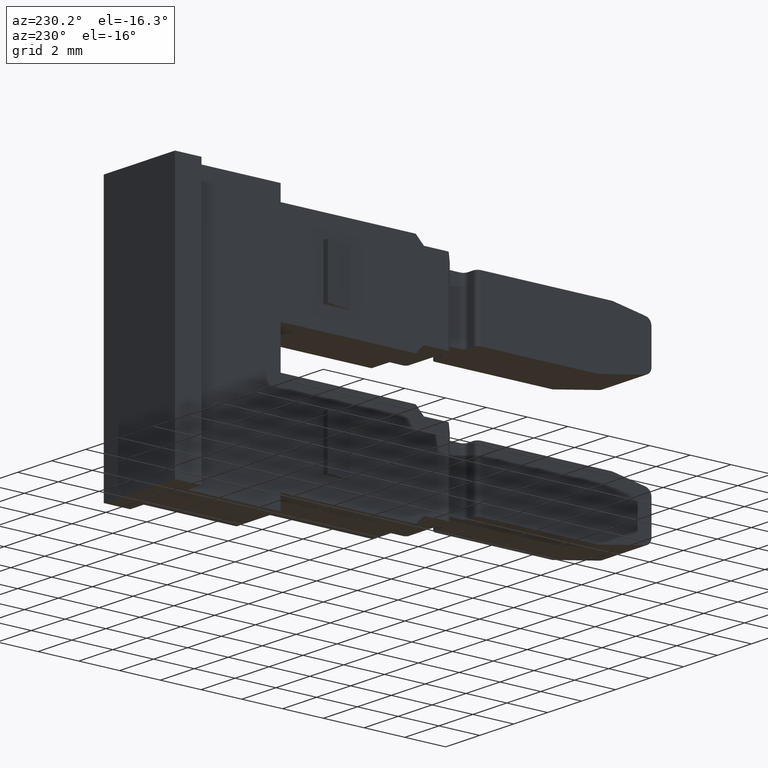
[diagram: clean part render]
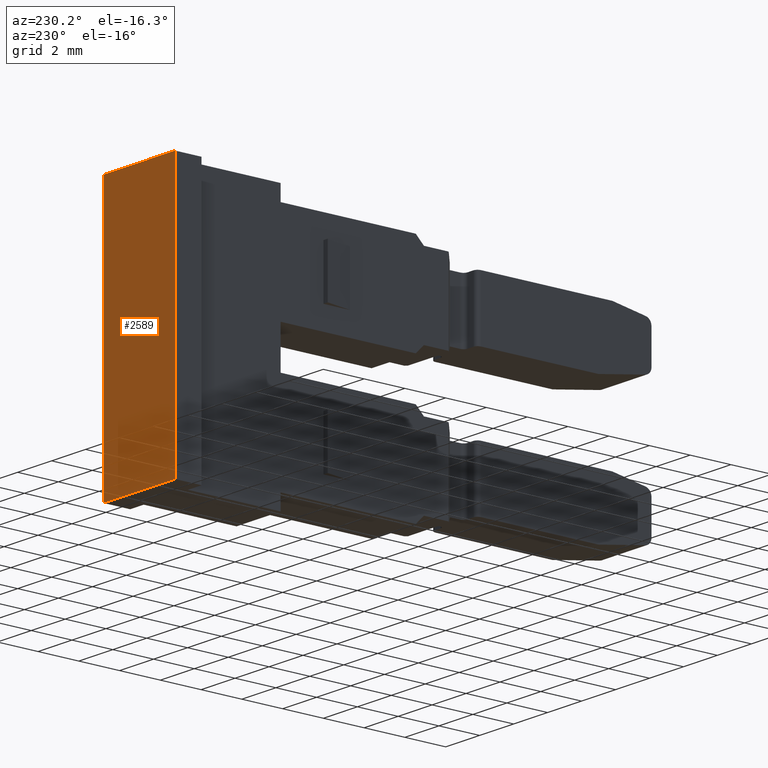
[diagram: same view with one face highlighted and labeled with its STEP entity id]
A machine part, auxiliary view. The second image highlights one B-rep face of the part: STEP entity #2589.
In plain terms, the highlighted planar face has unit normal (-0, -1, -0).
Its self-contained STEP definition (entity closure, byte-faithful):
#9 = ORIENTED_EDGE ( 'NONE', *, *, #2482, .F. ) ;
#17 = ORIENTED_EDGE ( 'NONE', *, *, #2439, .T. ) ;
#22 = ORIENTED_EDGE ( 'NONE', *, *, #2485, .T. ) ;
#26 = ORIENTED_EDGE ( 'NONE', *, *, #2506, .T. ) ;
#41 = ORIENTED_EDGE ( 'NONE', *, *, #2460, .F. ) ;
#120 = EDGE_LOOP ( 'NONE', ( #26, #22, #9, #17, #41 ) ) ;
#145 = CARTESIAN_POINT ( 'NONE',  ( 1394.182440319829500, 1077.957091196375100, 9.800000000002388100 ) ) ;
#150 = CARTESIAN_POINT ( 'NONE',  ( 1390.282440319680500, 1077.957128183415100, 9.800000000002359700 ) ) ;
#243 = CARTESIAN_POINT ( 'NONE',  ( 1389.982440319639900, 1077.957131028571000, -3.099999999942422600 ) ) ;
#289 = CARTESIAN_POINT ( 'NONE',  ( 1389.982440319680300, 1077.957126760835800, 9.800000000002381000 ) ) ;
#299 = CARTESIAN_POINT ( 'NONE',  ( 1394.182440319829500, 1077.957091196375100, -3.099999999942415900 ) ) ;
#436 = VERTEX_POINT ( 'NONE', #145 ) ;
#438 = VERTEX_POINT ( 'NONE', #150 ) ;
#480 = VERTEX_POINT ( 'NONE', #243 ) ;
#518 = VERTEX_POINT ( 'NONE', #289 ) ;
#551 = VERTEX_POINT ( 'NONE', #299 ) ;
#1168 = LINE ( 'NONE', #1225, #2058 ) ;
#1211 = DIRECTION ( 'NONE',  ( -0.9999999999550282000, 9.483856143999501200E-006, -1.734723475820503000E-015 ) ) ;
#1225 = CARTESIAN_POINT ( 'NONE',  ( 1394.082440319833900, 1077.957092144760700, -3.099999999942415900 ) ) ;
#1240 = CARTESIAN_POINT ( 'NONE',  ( 1389.982440319639900, 1077.957131028572100, 63.60600222243470400 ) ) ;
#1247 = LINE ( 'NONE', #1240, #2076 ) ;
#1274 = DIRECTION ( 'NONE',  ( -5.379506506941585200E-033, 5.672277993817434100E-028, -1.000000000000000000 ) ) ;
#1294 = LINE ( 'NONE', #1346, #2112 ) ;
#1315 = LINE ( 'NONE', #1316, #2073 ) ;
#1316 = CARTESIAN_POINT ( 'NONE',  ( 1394.182440319829500, 1077.957091196377200, 63.60600222243470400 ) ) ;
#1322 = DIRECTION ( 'NONE',  ( -5.379506530252374700E-033, -5.672277992797063800E-028, 1.000000000000000000 ) ) ;
#1338 = LINE ( 'NONE', #1379, #2108 ) ;
#1346 = CARTESIAN_POINT ( 'NONE',  ( 1390.282440319680500, 1077.957128183415100, 9.800000000002381000 ) ) ;
#1357 = DIRECTION ( 'NONE',  ( 0.9999999999550282000, -9.483856389462251300E-006, 1.826024711398672100E-015 ) ) ;
#1379 = CARTESIAN_POINT ( 'NONE',  ( 1412.087261014409900, 1077.957126760835800, 9.800000000002420100 ) ) ;
#1411 = DIRECTION ( 'NONE',  ( 1.000000000000000000, -0.0000000000000000000, 1.714874837238479900E-015 ) ) ;
#1661 = FACE_OUTER_BOUND ( 'NONE', #120, .T. ) ;
#1663 = PLANE ( 'NONE',  #2185 ) ;
#1677 = DIRECTION ( 'NONE',  ( -9.483855916345693300E-006, -0.9999999999550283100, -5.672277993052155700E-028 ) ) ;
#1681 = DIRECTION ( 'NONE',  ( 0.9999999999550282000, -9.483855916345691600E-006, 0.0000000000000000000 ) ) ;
#1704 = CARTESIAN_POINT ( 'NONE',  ( 1388.404219510060100, 1077.957145996190800, 63.60600222243470400 ) ) ;
#2058 = VECTOR ( 'NONE', #1211, 1000.000000000000200 ) ;
#2073 = VECTOR ( 'NONE', #1322, 1000.000000000000000 ) ;
#2076 = VECTOR ( 'NONE', #1274, 1000.000000000000000 ) ;
#2108 = VECTOR ( 'NONE', #1411, 1000.000000000000000 ) ;
#2112 = VECTOR ( 'NONE', #1357, 1000.000000000000200 ) ;
#2185 = AXIS2_PLACEMENT_3D ( 'NONE', #1704, #1677, #1681 ) ;
#2439 = EDGE_CURVE ( 'NONE', #551, #480, #1168, .T. ) ;
#2460 = EDGE_CURVE ( 'NONE', #518, #480, #1247, .T. ) ;
#2482 = EDGE_CURVE ( 'NONE', #551, #436, #1315, .T. ) ;
#2485 = EDGE_CURVE ( 'NONE', #438, #436, #1294, .T. ) ;
#2506 = EDGE_CURVE ( 'NONE', #518, #438, #1338, .T. ) ;
#2589 = ADVANCED_FACE ( 'NONE', ( #1661 ), #1663, .F. ) ;